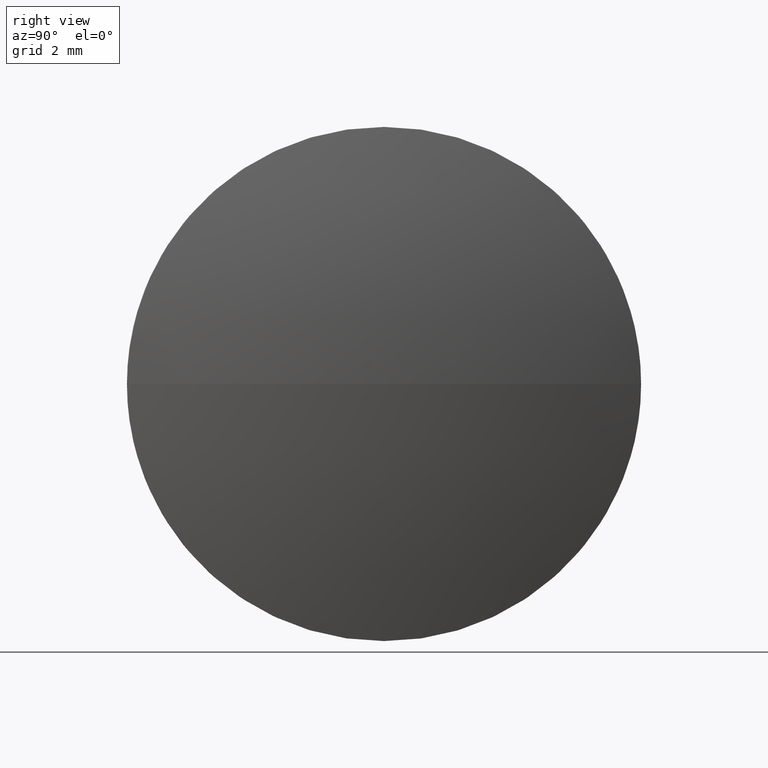
[diagram: clean part render]
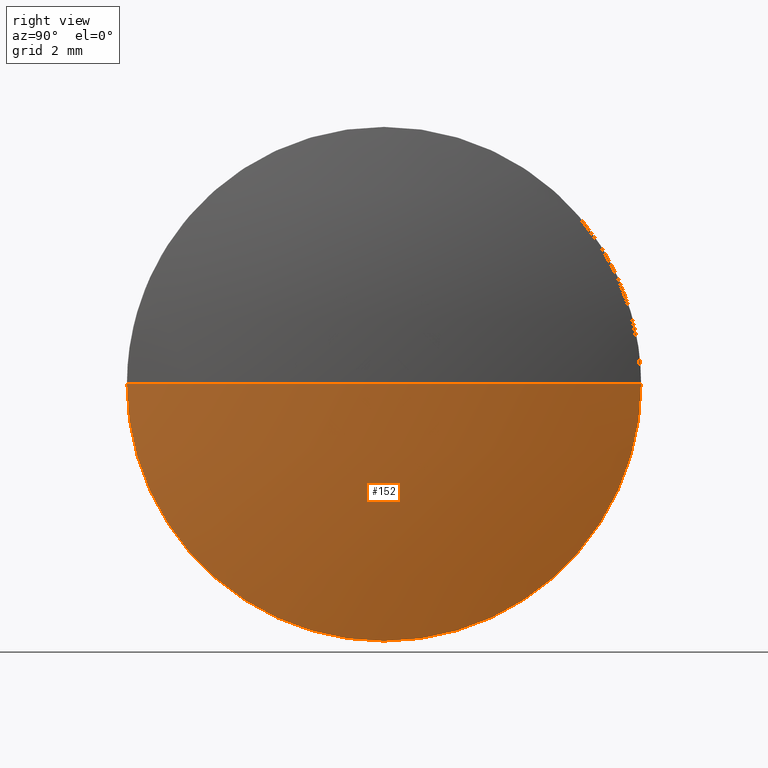
[diagram: same view with one face highlighted and labeled with its STEP entity id]
A machine part, right view. The second image highlights one B-rep face of the part: STEP entity #152.
In plain terms, the highlighted spherical surface has radius 31.0307 mm.
Its self-contained STEP definition (entity closure, byte-faithful):
#2 = CIRCLE ( 'NONE', #32, 7.500000000000007100 ) ;
#6 = CARTESIAN_POINT ( 'NONE',  ( 650.7168580883347900, 150.1803494272311400, -7.500000000000007100 ) ) ;
#12 = ORIENTED_EDGE ( 'NONE', *, *, #99, .F. ) ;
#17 = DIRECTION ( 'NONE',  ( 0.0000000000000000000, 1.000000000000000000, 0.0000000000000000000 ) ) ;
#19 = EDGE_LOOP ( 'NONE', ( #55, #103, #61, #12 ) ) ;
#21 = EDGE_CURVE ( 'NONE', #184, #151, #117, .T. ) ;
#32 = AXIS2_PLACEMENT_3D ( 'NONE', #143, #40, #156 ) ;
#40 = DIRECTION ( 'NONE',  ( -1.000000000000000000, -0.0000000000000000000, -0.0000000000000000000 ) ) ;
#45 = EDGE_CURVE ( 'NONE', #161, #98, #106, .T. ) ;
#46 = DIRECTION ( 'NONE',  ( -1.000000000000000000, -0.0000000000000000000, -0.0000000000000000000 ) ) ;
#51 = DIRECTION ( 'NONE',  ( 0.0000000000000000000, 1.224646799147353200E-016, -1.000000000000000000 ) ) ;
#53 = CARTESIAN_POINT ( 'NONE',  ( 620.6062059144215900, 150.1803494272310800, 0.0000000000000000000 ) ) ;
#55 = ORIENTED_EDGE ( 'NONE', *, *, #45, .F. ) ;
#61 = ORIENTED_EDGE ( 'NONE', *, *, #21, .F. ) ;
#63 = CARTESIAN_POINT ( 'NONE',  ( 650.7168580883347900, 142.6803494272310500, -9.184850993605189400E-016 ) ) ;
#76 = CIRCLE ( 'NONE', #134, 31.03065217391321100 ) ;
#80 = CARTESIAN_POINT ( 'NONE',  ( 650.7168580883347900, 157.6803494272311600, 0.0000000000000000000 ) ) ;
#85 = EDGE_CURVE ( 'NONE', #161, #151, #76, .T. ) ;
#91 = CARTESIAN_POINT ( 'NONE',  ( 650.7168580883347900, 150.1803494272311400, 0.0000000000000000000 ) ) ;
#93 = DIRECTION ( 'NONE',  ( -0.0000000000000000000, 0.0000000000000000000, -1.000000000000000000 ) ) ;
#98 = VERTEX_POINT ( 'NONE', #80 ) ;
#99 = EDGE_CURVE ( 'NONE', #98, #184, #2, .T. ) ;
#100 = FACE_OUTER_BOUND ( 'NONE', #19, .T. ) ;
#103 = ORIENTED_EDGE ( 'NONE', *, *, #85, .T. ) ;
#106 = CIRCLE ( 'NONE', #168, 31.03065217391321100 ) ;
#109 = DIRECTION ( 'NONE',  ( -0.0000000000000000000, 0.0000000000000000000, 1.000000000000000000 ) ) ;
#110 = CARTESIAN_POINT ( 'NONE',  ( 651.6368580883348600, 150.1803494272310800, 0.0000000000000000000 ) ) ;
#117 = CIRCLE ( 'NONE', #138, 7.500000000000007100 ) ;
#121 = DIRECTION ( 'NONE',  ( 1.000000000000000000, 0.0000000000000000000, 0.0000000000000000000 ) ) ;
#132 = SPHERICAL_SURFACE ( 'NONE', #163, 31.03065217391320000 ) ;
#134 = AXIS2_PLACEMENT_3D ( 'NONE', #53, #51, #173 ) ;
#138 = AXIS2_PLACEMENT_3D ( 'NONE', #91, #46, #166 ) ;
#143 = CARTESIAN_POINT ( 'NONE',  ( 650.7168580883347900, 150.1803494272311400, 0.0000000000000000000 ) ) ;
#151 = VERTEX_POINT ( 'NONE', #63 ) ;
#152 = ADVANCED_FACE ( 'NONE', ( #100 ), #132, .T. ) ;
#156 = DIRECTION ( 'NONE',  ( 0.0000000000000000000, 0.0000000000000000000, 1.000000000000000000 ) ) ;
#158 = CARTESIAN_POINT ( 'NONE',  ( 620.6062059144215900, 150.1803494272310800, 0.0000000000000000000 ) ) ;
#161 = VERTEX_POINT ( 'NONE', #110 ) ;
#163 = AXIS2_PLACEMENT_3D ( 'NONE', #158, #93, #17 ) ;
#166 = DIRECTION ( 'NONE',  ( 0.0000000000000000000, 0.0000000000000000000, 1.000000000000000000 ) ) ;
#168 = AXIS2_PLACEMENT_3D ( 'NONE', #185, #109, #121 ) ;
#173 = DIRECTION ( 'NONE',  ( 0.0000000000000000000, 1.000000000000000000, 1.224646799147352700E-016 ) ) ;
#184 = VERTEX_POINT ( 'NONE', #6 ) ;
#185 = CARTESIAN_POINT ( 'NONE',  ( 620.6062059144215900, 150.1803494272310800, 0.0000000000000000000 ) ) ;